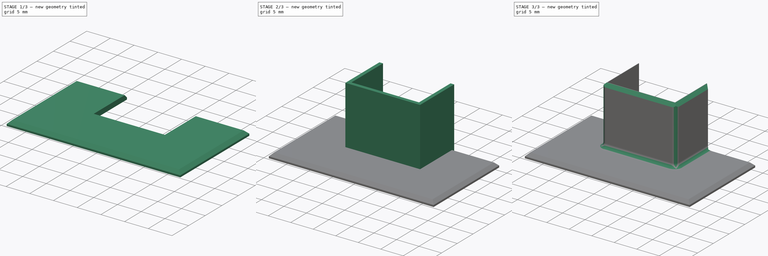
[diagram: build sequence overview — one tinted view per stage of 3, left to right]
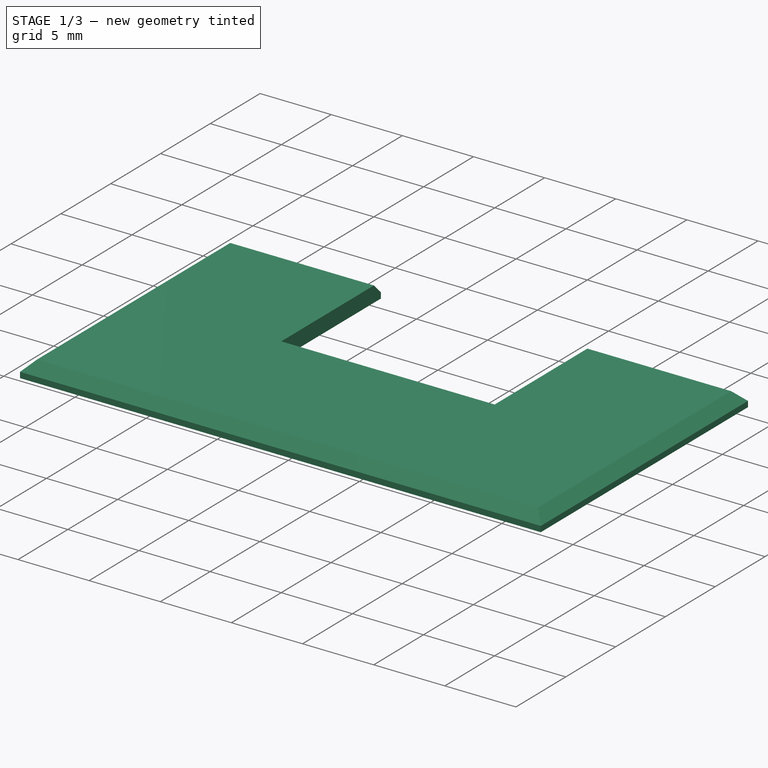
[diagram: stage 1 of 3 — iso view after this stage's code; geometry added in this stage tinted green]
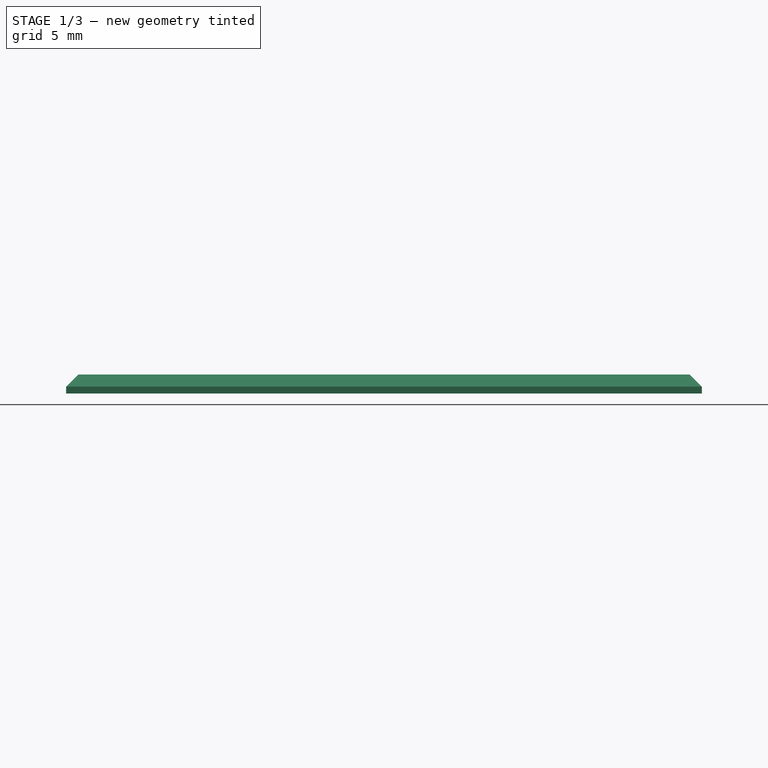
[diagram: stage 1 of 3 — front view after this stage's code; geometry added in this stage tinted green]
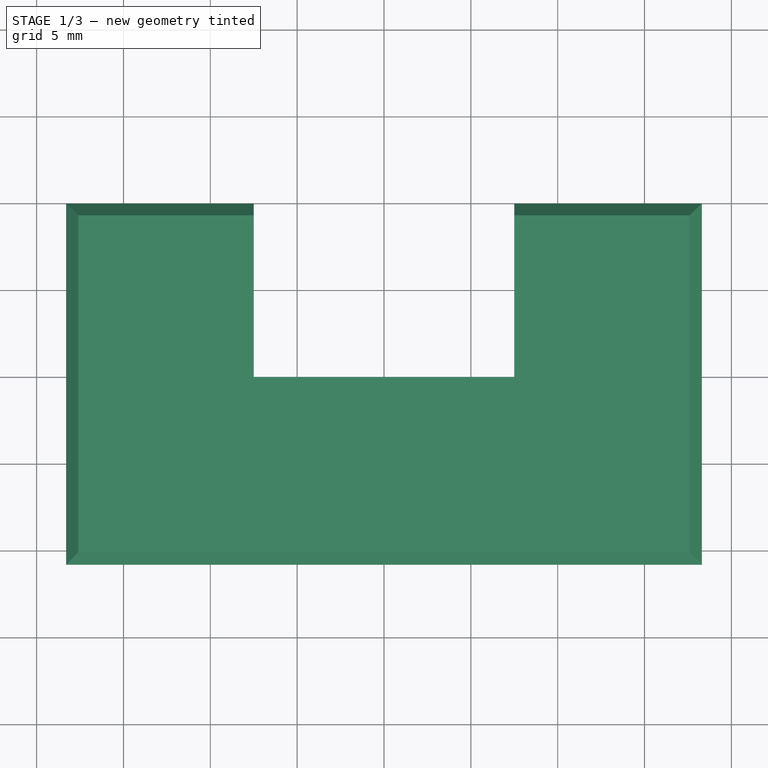
[diagram: stage 1 of 3 — top view after this stage's code; geometry added in this stage tinted green]
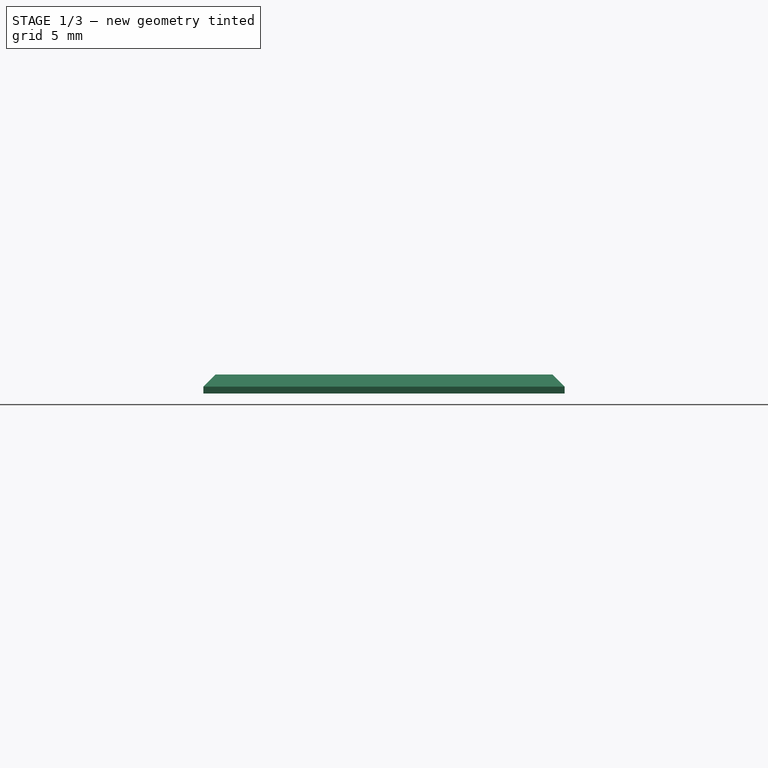
[diagram: stage 1 of 3 — right view after this stage's code; geometry added in this stage tinted green]
FCSTD DOCUMENT  (FreeCAD 0.22R34137 (Git))
Label: ConnectorEntryCover
License: All rights reserved
LicenseURL: http://en.wikipedia.org/wiki/All_rights_reserved
objects: Sketcher::SketchObject×3, PartDesign::Pad×2, PartDesign::Chamfer×2, PartDesign::Fillet×1, PartDesign::Body×1
note: 14 computed .brp shape members not serialized (recipe doc carries the construction recipe); baked Part::Feature solids carry a one-line shape summary decoded from their .brp

FEATURE [Sketcher::SketchObject] Sketch  label="Template"
  FullyConstrained = true
  MapMode = 5
  Support = -> [XY_Plane]
  sketch-geometry (17):
    g0: LineSegment StartX=-7.5 StartY=5 StartZ=0 EndX=7.5 EndY=5 EndZ=0
    g1: LineSegment StartX=7.5 StartY=5 StartZ=0 EndX=7.5 EndY=-5 EndZ=0
    g2: LineSegment StartX=7.5 StartY=-5 StartZ=0 EndX=-7.5 EndY=-5 EndZ=0
    g3: LineSegment StartX=-7.5 StartY=-5 StartZ=0 EndX=-7.5 EndY=5 EndZ=0
    g4: GeomPoint X=0 Y=0 Z=0
    g5: LineSegment StartX=-7.5 StartY=5 StartZ=0 EndX=-8.3 EndY=5 EndZ=0
    g6: LineSegment StartX=-8.3 StartY=5 StartZ=0 EndX=-8.3 EndY=-5.8 EndZ=0
    g7: LineSegment StartX=-8.3 StartY=-5.8 StartZ=0 EndX=8.3 EndY=-5.8 EndZ=0
    g8: LineSegment StartX=8.3 StartY=-5.8 StartZ=0 EndX=8.3 EndY=5 EndZ=0
    g9: LineSegment StartX=8.3 StartY=5 StartZ=0 EndX=7.5 EndY=5 EndZ=0
    g10: LineSegment StartX=-7.5 StartY=-5 StartZ=0 EndX=-7.5 EndY=-5.8 EndZ=0
    g11: LineSegment StartX=-8.3 StartY=5 StartZ=0 EndX=-18.3 EndY=5 EndZ=0
    g12: LineSegment StartX=-18.3 StartY=5 StartZ=0 EndX=-18.3 EndY=-15.8 EndZ=0
    g13: LineSegment StartX=-18.3 StartY=-15.8 StartZ=0 EndX=18.3 EndY=-15.8 EndZ=0
    g14: LineSegment StartX=18.3 StartY=-15.8 StartZ=0 EndX=18.3 EndY=5 EndZ=0
    g15: LineSegment StartX=18.3 StartY=5 StartZ=0 EndX=8.3 EndY=5 EndZ=0
    g16: LineSegment StartX=-8.3 StartY=-5.8 StartZ=0 EndX=-8.3 EndY=-15.8 EndZ=0
  constraints (46):
    c: Coincident(g0,g1)
    c: Coincident(g1,g2)
    c: Coincident(g2,g3)
    c: Coincident(g3,g0)
    c: Horizontal(g0)
    c: Horizontal(g2)
    c: Vertical(g1)
    c: Vertical(g3)
    c: DistanceX(g0,g0) = 15
    c: DistanceY(g3,g3) = 10
    c: Symmetric(g2,g1,g4)
    c: Coincident(g5,g3)
    c: Horizontal(g5)
    c: Coincident(g6,g5)
    c: Vertical(g6)
    c: Horizontal(g7)
    c: Coincident(g6,g7)
    c: Coincident(g8,g7)
    c: Vertical(g8)
    c: Coincident(g9,g8)
    c: Coincident(g9,g1)
    c: Horizontal(g9)
    c: Equal(g5,g9)
    c: DistanceX(g9,g9) = 0.8
    c: Coincident(g10,g2)
    c: PointOnObject(g10,g7)
    c: Vertical(g10)
    c: Equal(g5,g10)
    c: Coincident(g5,g11)
    c: Horizontal(g11)
    c: Coincident(g11,g12)
    c: Vertical(g12)
    c: Coincident(g12,g13)
    c: Horizontal(g13)
    c: Coincident(g13,g14)
    c: Vertical(g14)
    c: Coincident(g14,g15)
    c: Coincident(g15,g8)
    c: Horizontal(g15)
    c: Equal(g15,g11)
    c: Equal(g3,g11)
    c: Coincident(g16,g6)
    c: PointOnObject(g16,g13)
    c: Vertical(g16)
    c: Equal(g15,g16)
    c: Coincident(g4,g-1)  '__ANCHOR__'
FEATURE [Sketcher::SketchObject] Sketch001
  ExternalGeometry = -> [Sketch]
  FullyConstrained = true
  MapMode = 5
  Support = -> [XY_Plane]
  sketch-geometry (8):
    g0: LineSegment StartX=-7.5 StartY=5 StartZ=0 EndX=-18.3 EndY=5 EndZ=0
    g1: LineSegment StartX=-18.3 StartY=5 StartZ=0 EndX=-18.3 EndY=-15.8 EndZ=0
    g2: LineSegment StartX=-18.3 StartY=-15.8 StartZ=0 EndX=18.3 EndY=-15.8 EndZ=0
    g3: LineSegment StartX=18.3 StartY=-15.8 StartZ=0 EndX=18.3 EndY=5 EndZ=0
    g4: LineSegment StartX=18.3 StartY=5 StartZ=0 EndX=7.5 EndY=5 EndZ=0
    g5: LineSegment StartX=7.5 StartY=5 StartZ=0 EndX=7.5 EndY=-5 EndZ=0
    g6: LineSegment StartX=7.5 StartY=-5 StartZ=0 EndX=-7.5 EndY=-5 EndZ=0
    g7: LineSegment StartX=-7.5 StartY=-5 StartZ=0 EndX=-7.5 EndY=5 EndZ=0
  constraints (16):
    c: Coincident(g-3,g0)
    c: Coincident(g0,g-4)
    c: Coincident(g0,g1)
    c: Coincident(g1,g-4)
    c: Coincident(g1,g2)
    c: Coincident(g2,g-5)
    c: Coincident(g2,g3)
    c: Coincident(g3,g-5)
    c: Coincident(g3,g4)
    c: Coincident(g4,g-6)
    c: Coincident(g4,g5)
    c: Coincident(g5,g-6)
    c: Coincident(g5,g6)
    c: Coincident(g6,g-3)
    c: Coincident(g6,g7)
    c: Coincident(g7,g0)
FEATURE [PartDesign::Pad] Pad
  Direction = (0,0,1)
  Length = 1.1
  Length2 = 10
  Profile = -> Sketch001
  ReferenceAxis = -> Sketch001 [N_Axis]
  Type = 0
FEATURE [Sketcher::SketchObject] Sketch002
  ExternalGeometry = -> [Sketch]
  FullyConstrained = true
  MapMode = 5
  Support = -> [XY_Plane]
  sketch-geometry (8):
    g0: LineSegment StartX=-7.5 StartY=5 StartZ=0 EndX=-8.3 EndY=5 EndZ=0
    g1: LineSegment StartX=-8.3 StartY=5 StartZ=0 EndX=-8.3 EndY=-5.8 EndZ=0
    g2: LineSegment StartX=-8.3 StartY=-5.8 StartZ=0 EndX=8.3 EndY=-5.8 EndZ=0
    g3: LineSegment StartX=8.3 StartY=-5.8 StartZ=0 EndX=8.3 EndY=5 EndZ=0
    g4: LineSegment StartX=8.3 StartY=5 StartZ=0 EndX=7.5 EndY=5 EndZ=0
    g5: LineSegment StartX=7.5 StartY=5 StartZ=0 EndX=7.5 EndY=-5 EndZ=0
    g6: LineSegment StartX=7.5 StartY=-5 StartZ=0 EndX=-7.5 EndY=-5 EndZ=0
    g7: LineSegment StartX=-7.5 StartY=-5 StartZ=0 EndX=-7.5 EndY=5 EndZ=0
  constraints (16):
    c: Coincident(g-3,g0)
    c: Coincident(g0,g-4)
    c: Coincident(g0,g1)
    c: Coincident(g1,g-4)
    c: Coincident(g1,g2)
    c: Coincident(g2,g-6)
    c: Coincident(g2,g3)
    c: Coincident(g3,g-6)
    c: Coincident(g3,g4)
    c: Coincident(g4,g-5)
    c: Coincident(g4,g5)
    c: Coincident(g5,g-5)
    c: Coincident(g5,g6)
    c: Coincident(g6,g-3)
    c: Coincident(g6,g7)
    c: Coincident(g7,g0)
FEATURE [PartDesign::Chamfer] Chamfer
  Angle = 45
  Base = -> Pad [Edge4,Edge7,Edge10,Edge13,Edge16]
  BaseFeature = -> Pad
  ChamferType = 0
  FlipDirection = false
  Size = 0.7
  Size2 = 1
  SupportTransform = false
  UseAllEdges = false
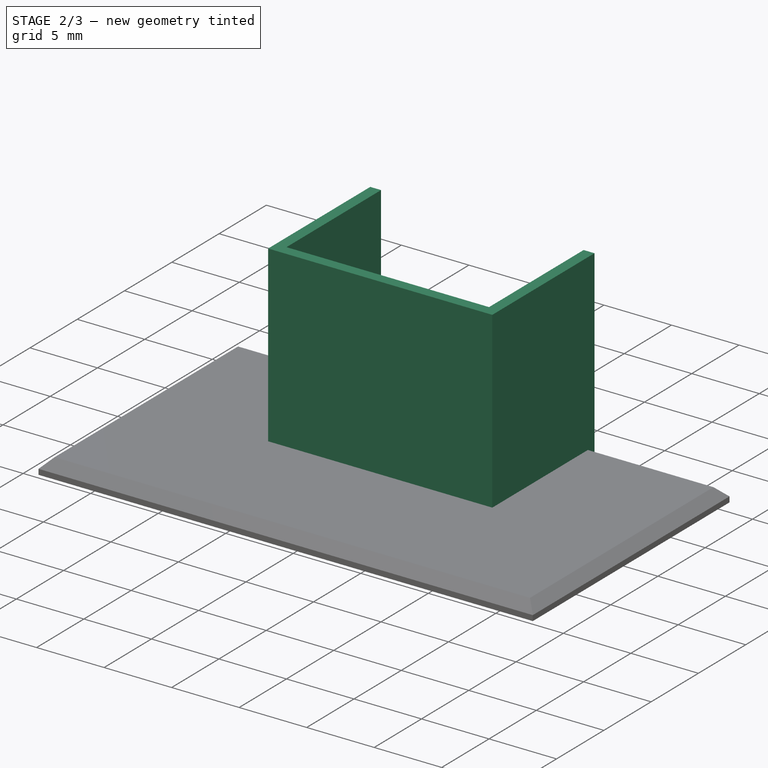
[diagram: stage 2 of 3 — iso view after this stage's code; geometry added in this stage tinted green]
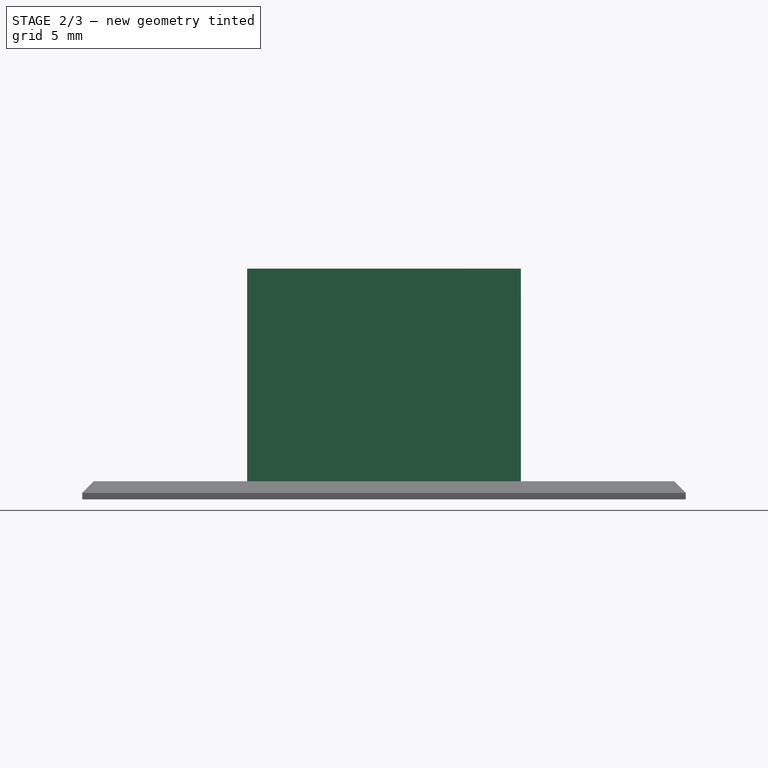
[diagram: stage 2 of 3 — front view after this stage's code; geometry added in this stage tinted green]
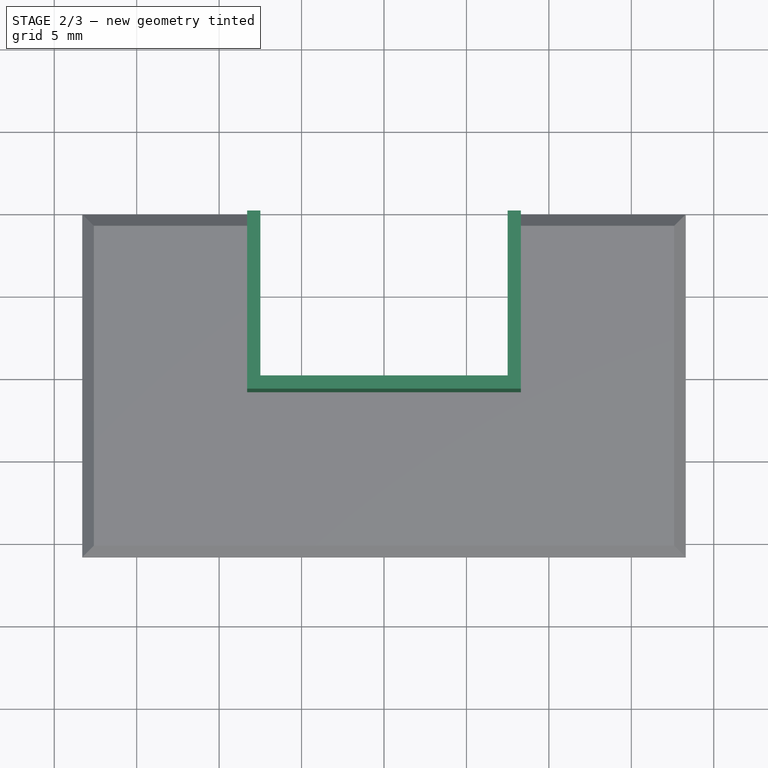
[diagram: stage 2 of 3 — top view after this stage's code; geometry added in this stage tinted green]
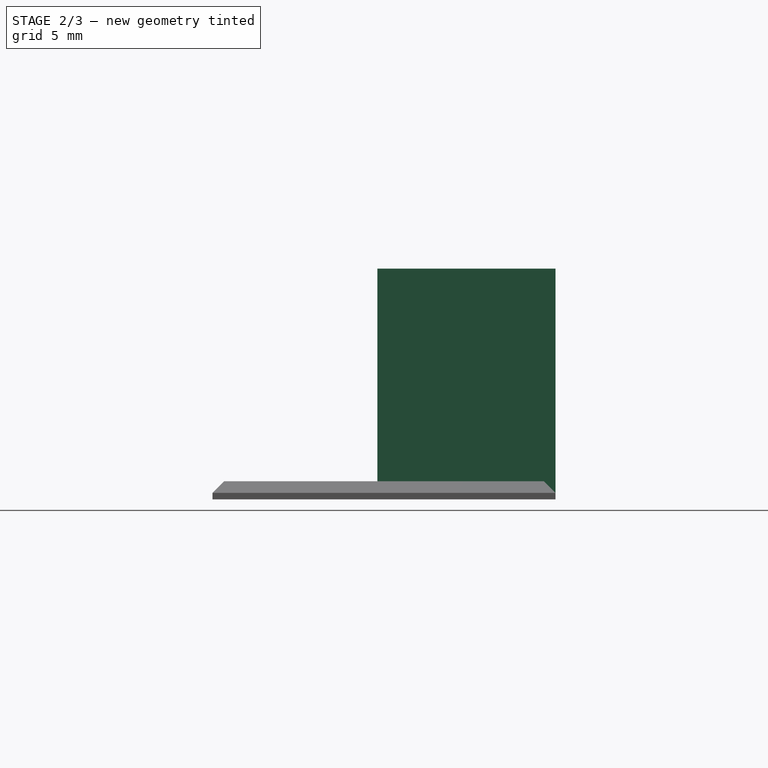
[diagram: stage 2 of 3 — right view after this stage's code; geometry added in this stage tinted green]
FEATURE [PartDesign::Pad] Pad001
  BaseFeature = -> Chamfer
  Direction = (0,0,1)
  Length = 14
  Length2 = 10
  Profile = -> Sketch002
  ReferenceAxis = -> Sketch002 [N_Axis]
  Refine = true
  Type = 0
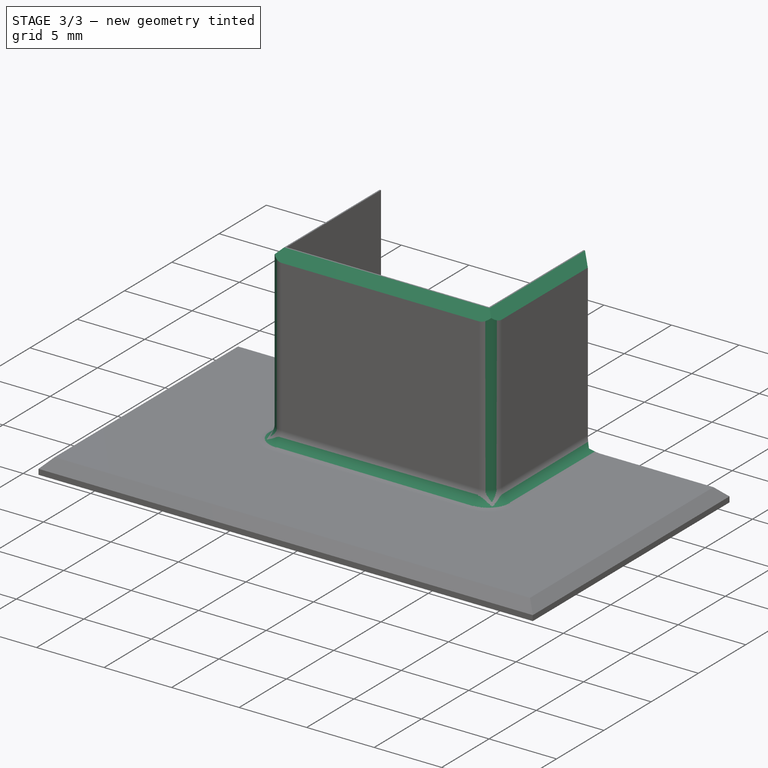
[diagram: stage 3 of 3 — iso view after this stage's code; geometry added in this stage tinted green]
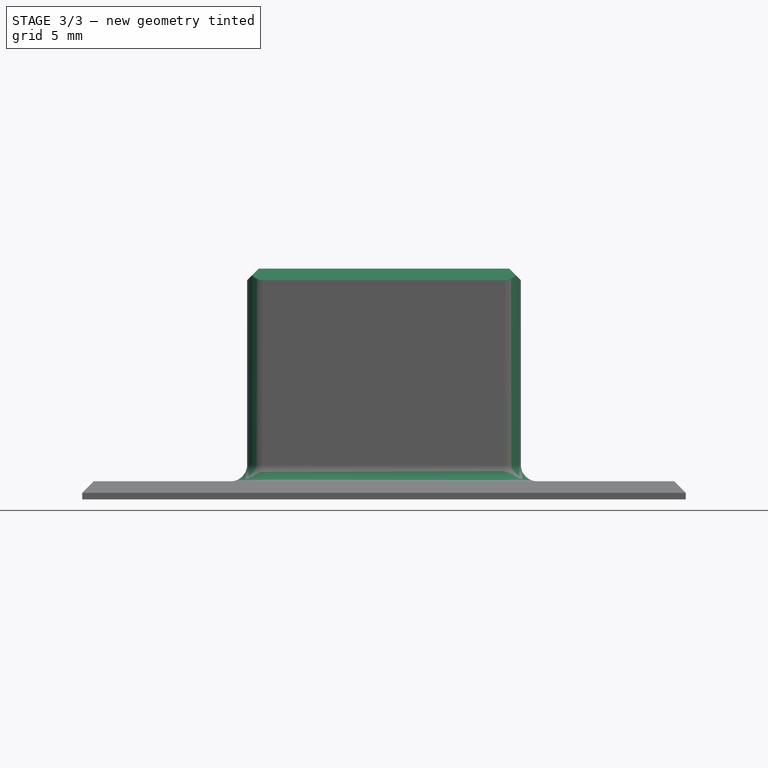
[diagram: stage 3 of 3 — front view after this stage's code; geometry added in this stage tinted green]
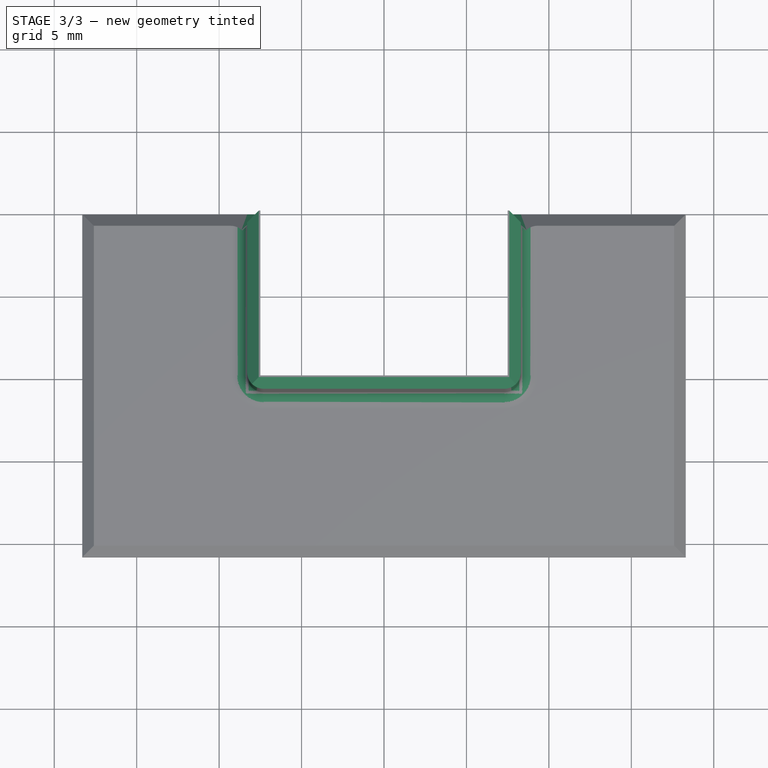
[diagram: stage 3 of 3 — top view after this stage's code; geometry added in this stage tinted green]
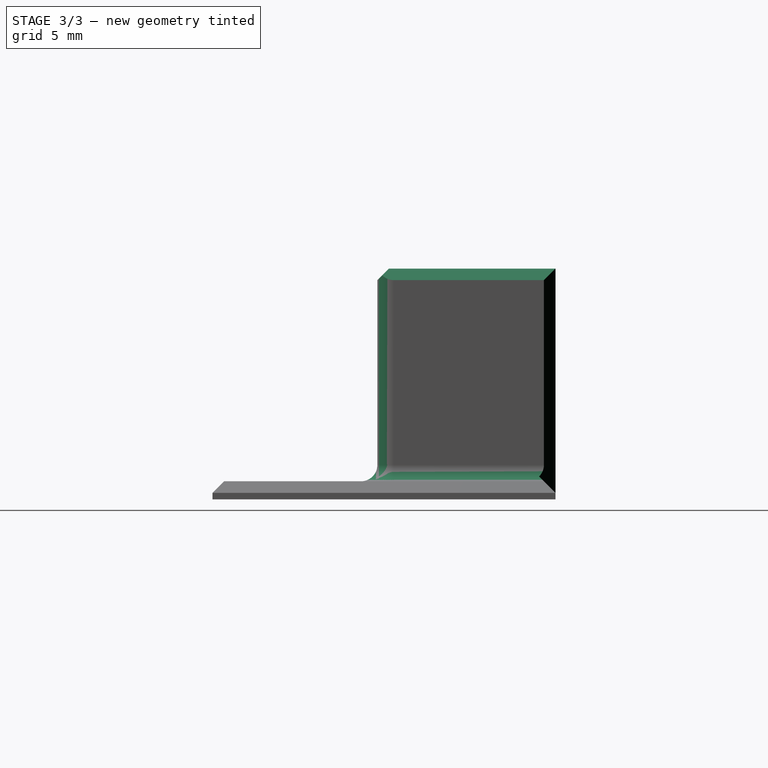
[diagram: stage 3 of 3 — right view after this stage's code; geometry added in this stage tinted green]
FEATURE [PartDesign::Chamfer] Chamfer001
  Angle = 45
  Base = -> Pad001 [Edge8,Edge7,Edge10,Edge35,Edge11]
  BaseFeature = -> Pad001
  ChamferType = 0
  FlipDirection = false
  Refine = true
  Size = 0.7
  Size2 = 1
  SupportTransform = false
  UseAllEdges = false
FEATURE [PartDesign::Fillet] Fillet
  Base = -> Chamfer001 [Edge13,Edge22,Edge14,Edge33,Edge15]
  BaseFeature = -> Chamfer001
  Radius = 1
  SupportTransform = false
  UseAllEdges = false
FEATURE [PartDesign::Body] Body
  Group = -> [Sketch,Sketch001,Pad,Sketch002,Chamfer,Pad001,Chamfer001,Fillet]
  Origin = -> Origin
  Tip = -> Fillet
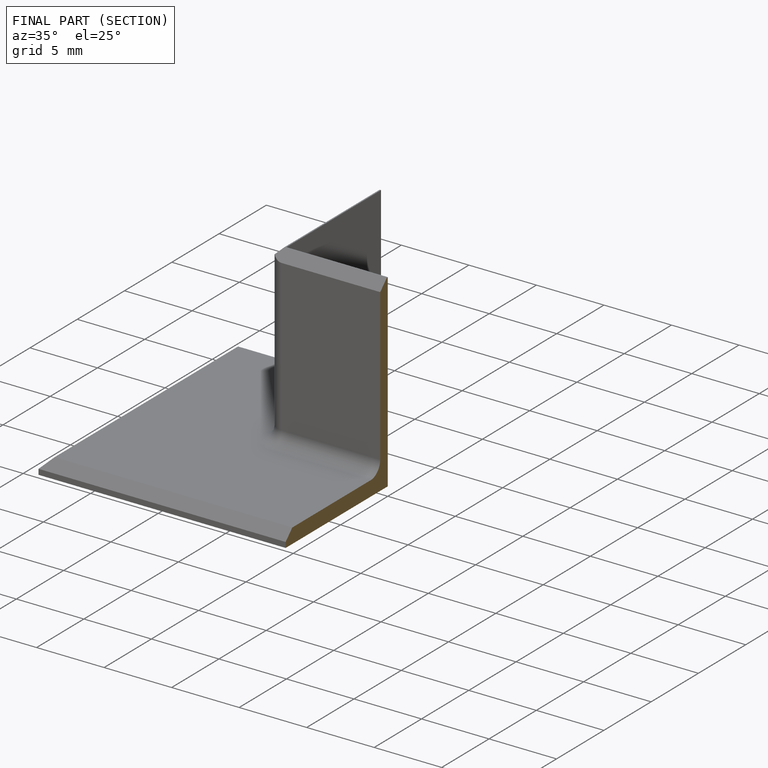
[diagram: finished part — half-section view (interior)]
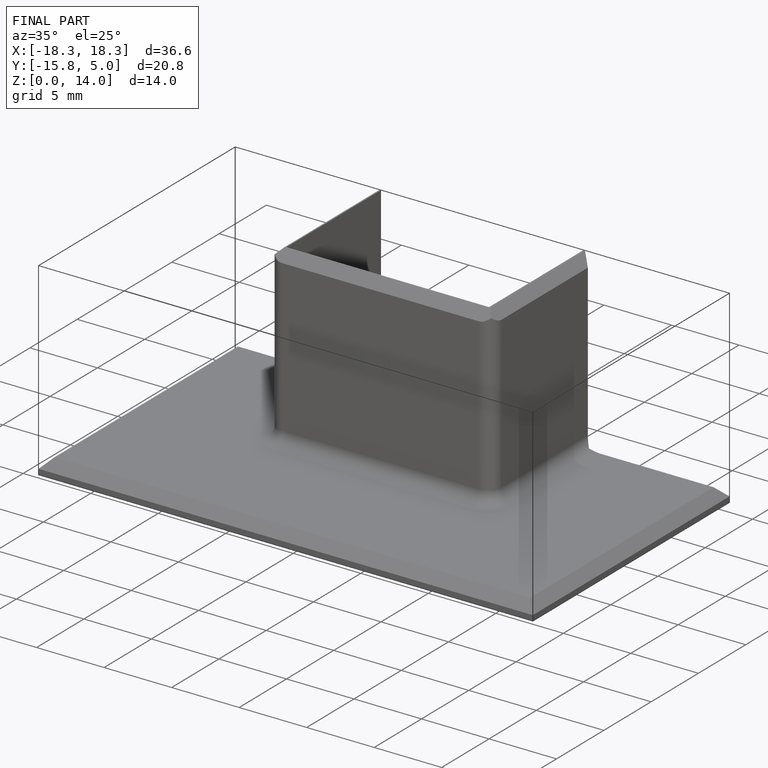
[diagram: finished part — iso view with bounding-box wireframe]
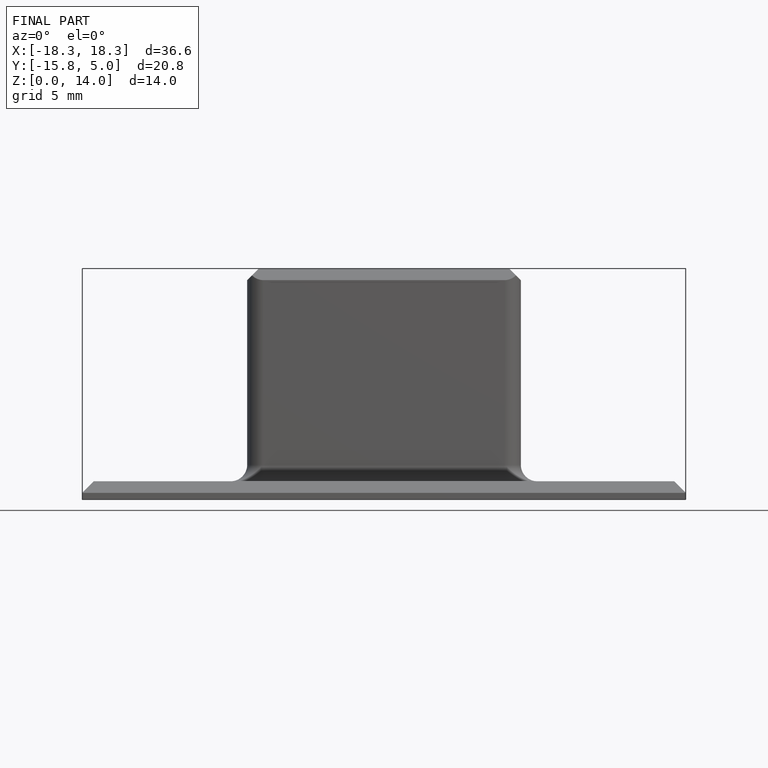
[diagram: finished part — front view with bounding-box wireframe]
